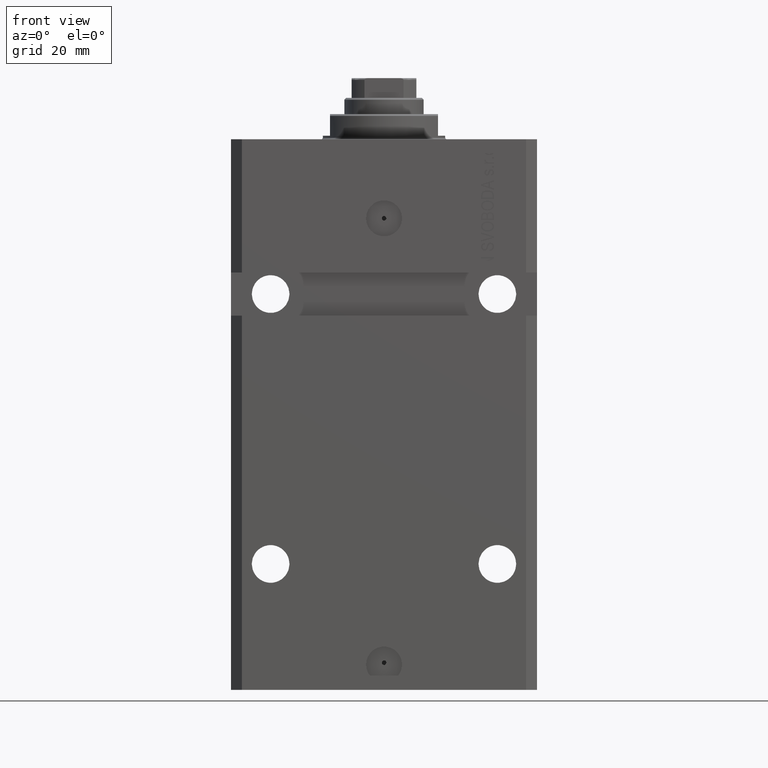
[diagram: clean part render]
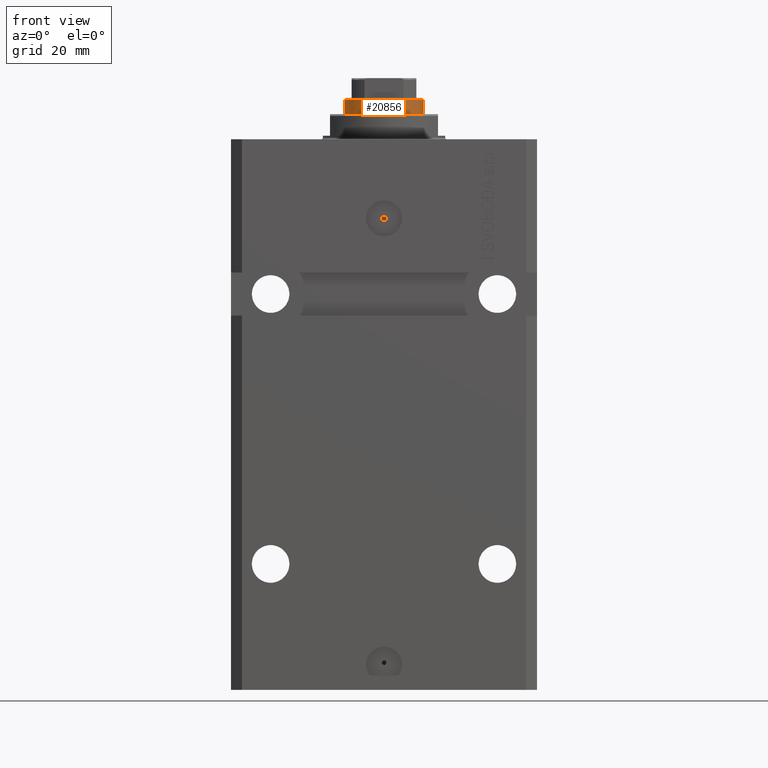
[diagram: same view with one face highlighted and labeled with its STEP entity id]
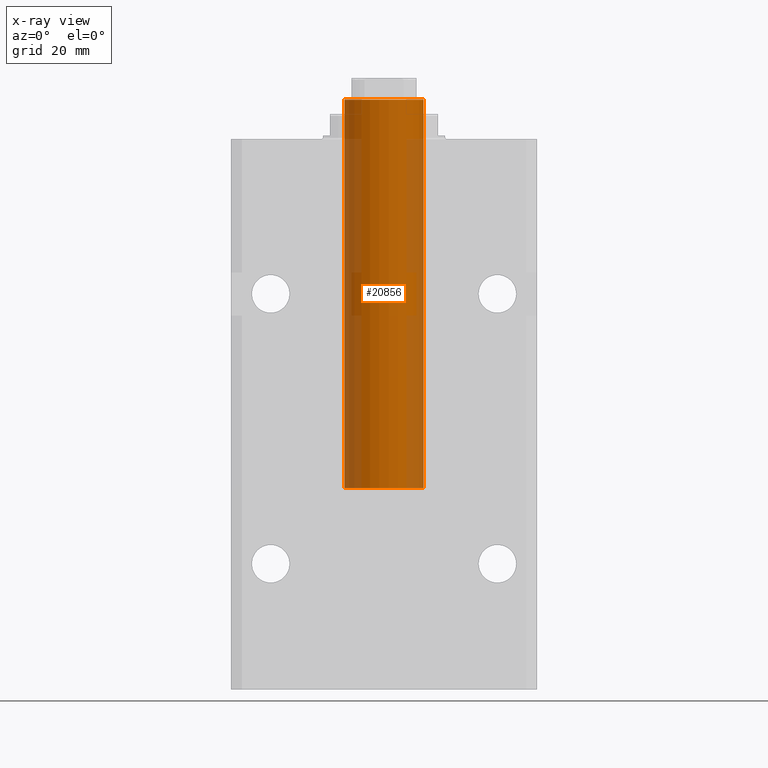
[diagram: x-ray of the same camera — body ghosted, the highlighted face saturated]
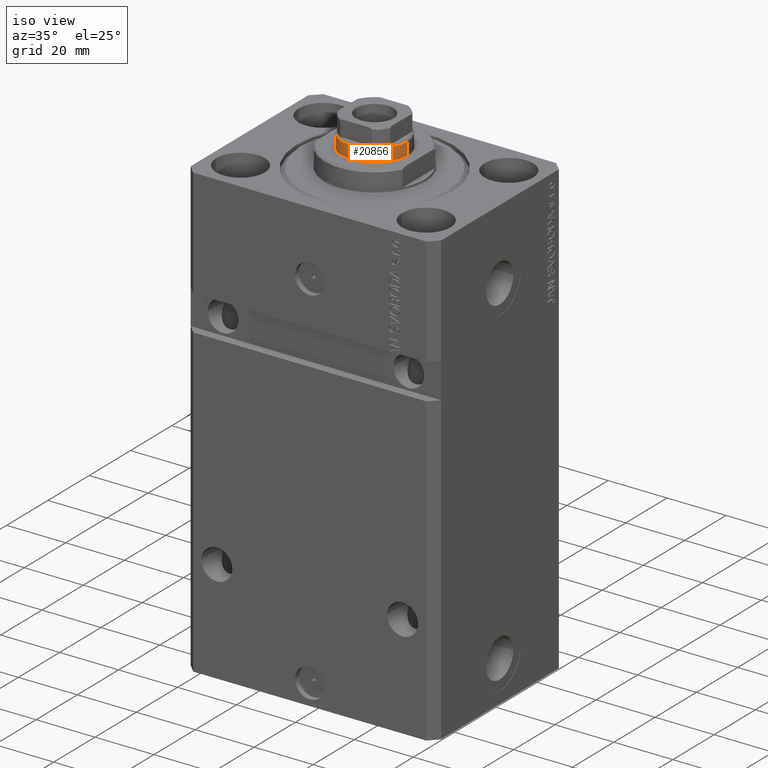
[diagram: same view with one face highlighted and labeled with its STEP entity id]
A machine part, front view. The second image highlights one B-rep face of the part: STEP entity #20856.
The next image is the same camera in x-ray: the body ghosted, the highlighted face saturated — about 36% of this face is hidden behind the body in this view.
A second angle (iso view) of the same face is appended — the face is thin or edge-on in the first view.
In plain terms, the highlighted cylindrical surface (partial cylindrical patch) has radius 11 mm, axis along (-0, -0, -1).
Its self-contained STEP definition (entity closure, byte-faithful):
#2246 = DIRECTION ( 'NONE',  ( -0.000000000000000000, -0.000000000000000000, -1.000000000000000000 ) ) ;
#2257 = ORIENTED_EDGE ( 'NONE', *, *, #14350, .T. ) ;
#5667 = EDGE_CURVE ( 'NONE', #31933, #18322, #12725, .T. ) ;
#6464 = CARTESIAN_POINT ( 'NONE',  ( 0.000000000000000000, 0.000000000000000000, 44.60000000000000142 ) ) ;
#7857 = VECTOR ( 'NONE', #2246, 1000.000000000000000 ) ;
#10210 = FACE_OUTER_BOUND ( 'NONE', #21994, .T. ) ;
#10267 = ORIENTED_EDGE ( 'NONE', *, *, #32447, .F. ) ;
#12725 = CIRCLE ( 'NONE', #46940, 11.00000000000000000 ) ;
#13174 = CARTESIAN_POINT ( 'NONE',  ( 11.00000000000000000, 1.347111479062088405E-15, 152.6000000000000512 ) ) ;
#13870 = CIRCLE ( 'NONE', #31010, 11.00000000000000000 ) ;
#14187 = LINE ( 'NONE', #41218, #30691 ) ;
#14288 = CARTESIAN_POINT ( 'NONE',  ( 11.00000000000000000, 1.347111479062088405E-15, 44.60000000000000142 ) ) ;
#14350 = EDGE_CURVE ( 'NONE', #35999, #27201, #13870, .T. ) ;
#17427 = DIRECTION ( 'NONE',  ( 0.000000000000000000, 0.000000000000000000, 1.000000000000000000 ) ) ;
#17911 = CARTESIAN_POINT ( 'NONE',  ( -11.00000000000000000, 0.000000000000000000, 44.60000000000000142 ) ) ;
#18322 = VERTEX_POINT ( 'NONE', #14288 ) ;
#20856 = ADVANCED_FACE ( 'NONE', ( #10210 ), #25075, .T. ) ;
#21606 = DIRECTION ( 'NONE',  ( 0.000000000000000000, 0.000000000000000000, -1.000000000000000000 ) ) ;
#21904 = DIRECTION ( 'NONE',  ( -0.000000000000000000, -0.000000000000000000, -1.000000000000000000 ) ) ;
#21994 = EDGE_LOOP ( 'NONE', ( #10267, #2257, #46913, #37886 ) ) ;
#23631 = EDGE_CURVE ( 'NONE', #27201, #31933, #36314, .T. ) ;
#23866 = CARTESIAN_POINT ( 'NONE',  ( -11.00000000000000000, 0.000000000000000000, 152.6000000000000512 ) ) ;
#25075 = CYLINDRICAL_SURFACE ( 'NONE', #40423, 11.00000000000000000 ) ;
#27201 = VERTEX_POINT ( 'NONE', #23866 ) ;
#28761 = CARTESIAN_POINT ( 'NONE',  ( -11.00000000000000000, 0.000000000000000000, 153.1000000000000227 ) ) ;
#30691 = VECTOR ( 'NONE', #40495, 1000.000000000000000 ) ;
#31010 = AXIS2_PLACEMENT_3D ( 'NONE', #35966, #21606, #31837 ) ;
#31837 = DIRECTION ( 'NONE',  ( 1.000000000000000000, 0.000000000000000000, 0.000000000000000000 ) ) ;
#31933 = VERTEX_POINT ( 'NONE', #17911 ) ;
#32447 = EDGE_CURVE ( 'NONE', #35999, #18322, #14187, .T. ) ;
#35966 = CARTESIAN_POINT ( 'NONE',  ( 0.000000000000000000, 0.000000000000000000, 152.6000000000000512 ) ) ;
#35999 = VERTEX_POINT ( 'NONE', #13174 ) ;
#36314 = LINE ( 'NONE', #28761, #7857 ) ;
#36507 = CARTESIAN_POINT ( 'NONE',  ( 0.000000000000000000, 0.000000000000000000, 153.1000000000000227 ) ) ;
#36743 = DIRECTION ( 'NONE',  ( -1.000000000000000000, 0.000000000000000000, 0.000000000000000000 ) ) ;
#37886 = ORIENTED_EDGE ( 'NONE', *, *, #5667, .T. ) ;
#40423 = AXIS2_PLACEMENT_3D ( 'NONE', #36507, #21904, #36743 ) ;
#40495 = DIRECTION ( 'NONE',  ( -0.000000000000000000, -0.000000000000000000, -1.000000000000000000 ) ) ;
#41218 = CARTESIAN_POINT ( 'NONE',  ( 11.00000000000000000, 1.347111479062088405E-15, 153.1000000000000227 ) ) ;
#46913 = ORIENTED_EDGE ( 'NONE', *, *, #23631, .T. ) ;
#46940 = AXIS2_PLACEMENT_3D ( 'NONE', #6464, #17427, #47146 ) ;
#47146 = DIRECTION ( 'NONE',  ( 1.000000000000000000, 0.000000000000000000, 0.000000000000000000 ) ) ;